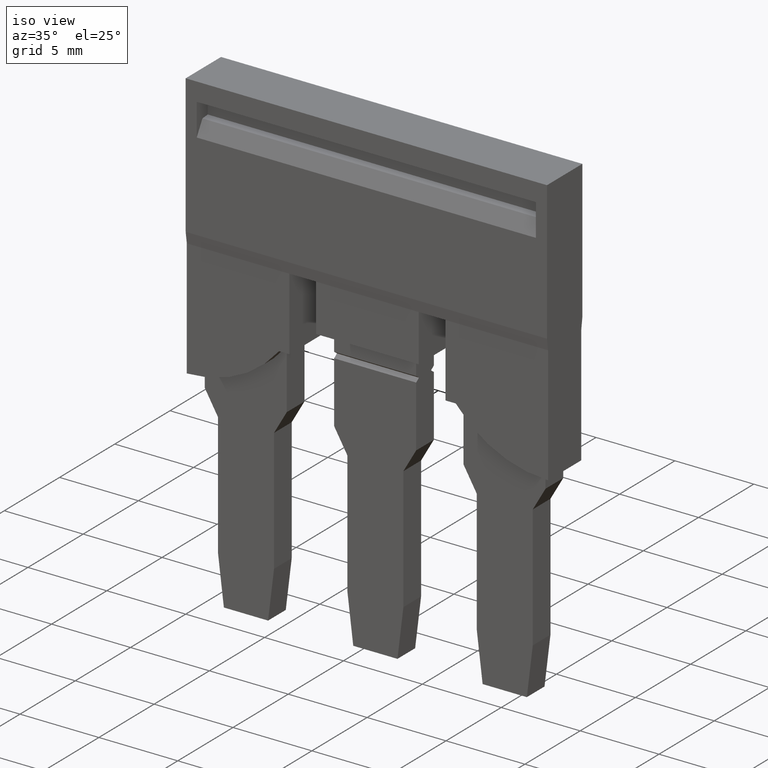
[diagram: clean part render]
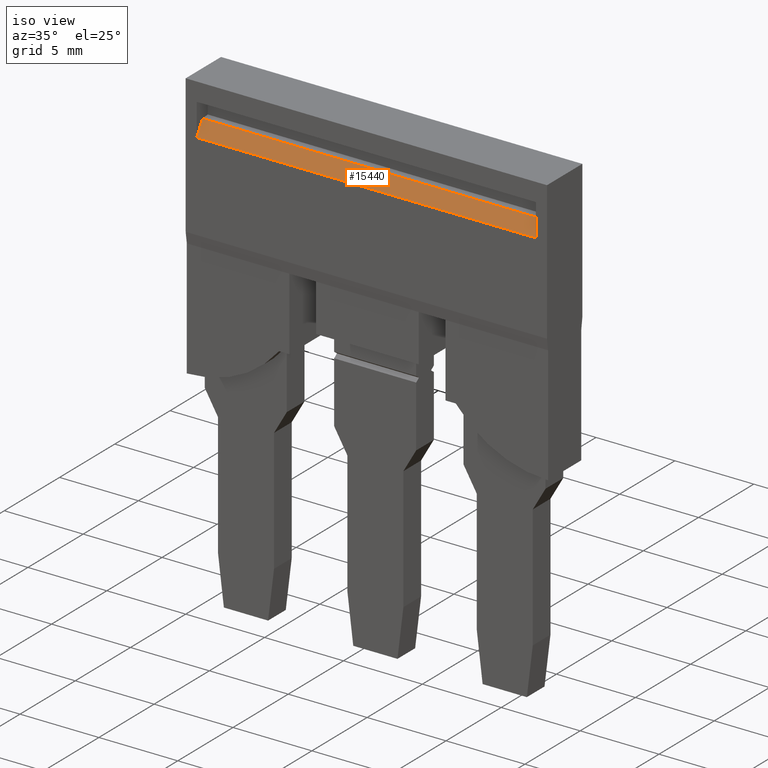
[diagram: same view with one face highlighted and labeled with its STEP entity id]
A machine part, iso view. The second image highlights one B-rep face of the part: STEP entity #15440.
In plain terms, the highlighted planar face has unit normal (-0, 0.866, -0.5).
Its self-contained STEP definition (entity closure, byte-faithful):
#120=CARTESIAN_POINT('',(5.78553886079762,-9.17834604761451,
44.5099999999992));
#130=VERTEX_POINT('',#120);
#160=CARTESIAN_POINT('',(7.93304386136271,-12.8979338181015,
44.5099999999992));
#170=DIRECTION('',(-0.5,0.866025403784439,-1.54074395550979E-33));
#180=VECTOR('',#170,1.);
#190=LINE('',#160,#180);
#200=CARTESIAN_POINT('',(5.2679518015911,-8.28185896372866,
44.5099999999992));
#210=VERTEX_POINT('',#200);
#220=EDGE_CURVE('',#130,#210,#190,.T.);
#13820=CARTESIAN_POINT('',(5.2679518015911,-8.28185896372866,
66.0099999999993));
#13830=VERTEX_POINT('',#13820);
#13880=CARTESIAN_POINT('',(5.2679518015911,-8.28185896372866,
38.8749840000005));
#13890=DIRECTION('',(-3.08148791101958E-33,1.23259516440783E-32,1.));
#13900=VECTOR('',#13890,1.);
#13910=LINE('',#13880,#13900);
#13920=EDGE_CURVE('',#210,#13830,#13910,.T.);
#14150=CARTESIAN_POINT('',(5.78553886079762,-9.17834604761451,
66.0099999999993));
#14160=VERTEX_POINT('',#14150);
#14190=CARTESIAN_POINT('',(5.78553886079762,-9.17834604761451,
38.8749840000005));
#14200=DIRECTION('',(-3.08148791101958E-33,1.23259516440783E-32,1.));
#14210=VECTOR('',#14200,1.);
#14220=LINE('',#14190,#14210);
#14230=EDGE_CURVE('',#130,#14160,#14220,.T.);
#14540=CARTESIAN_POINT('',(7.93304386136271,-12.8979338181015,
66.0099999999993));
#14550=DIRECTION('',(0.5,-0.866025403784439,1.54074395550979E-33));
#14560=VECTOR('',#14550,1.);
#14570=LINE('',#14540,#14560);
#14580=EDGE_CURVE('',#13830,#14160,#14570,.T.);
#15330=CARTESIAN_POINT('',(5.37206521170144,-8.46218867978904,
66.0099999999993));
#15340=DIRECTION('',(-0.866025403784439,-0.5,3.49432900964156E-33));
#15350=DIRECTION('',(0.5,-0.866025403784439,1.54074395550979E-33));
#15360=AXIS2_PLACEMENT_3D('',#15330,#15340,#15350);
#15370=PLANE('',#15360);
#15380=ORIENTED_EDGE('',*,*,#14580,.T.);
#15390=ORIENTED_EDGE('',*,*,#13920,.T.);
#15400=ORIENTED_EDGE('',*,*,#220,.T.);
#15410=ORIENTED_EDGE('',*,*,#14230,.F.);
#15420=EDGE_LOOP('',(#15410,#15400,#15390,#15380));
#15430=FACE_OUTER_BOUND('',#15420,.T.);
#15440=ADVANCED_FACE('',(#15430),#15370,.F.);